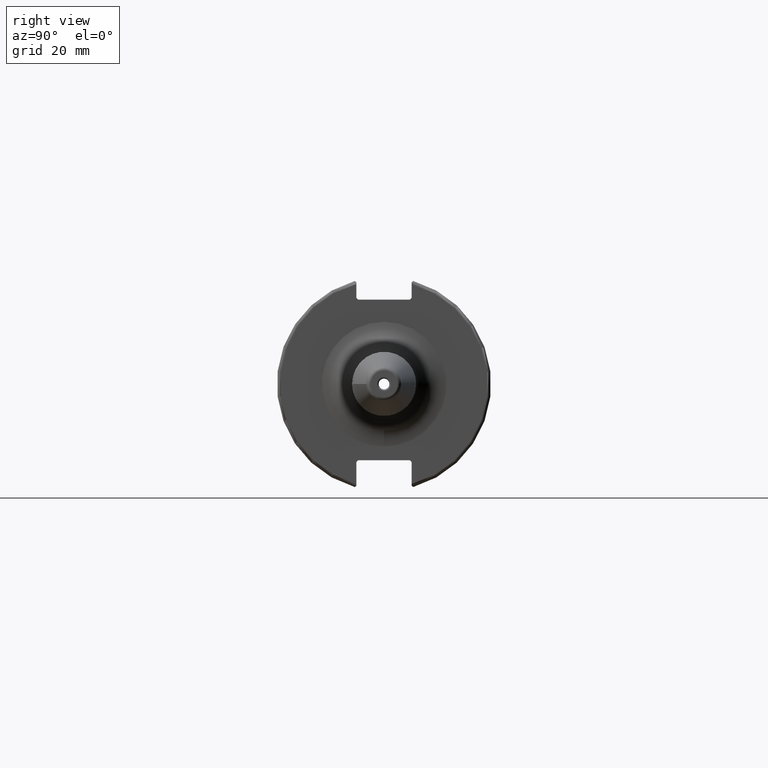
[diagram: clean part render]
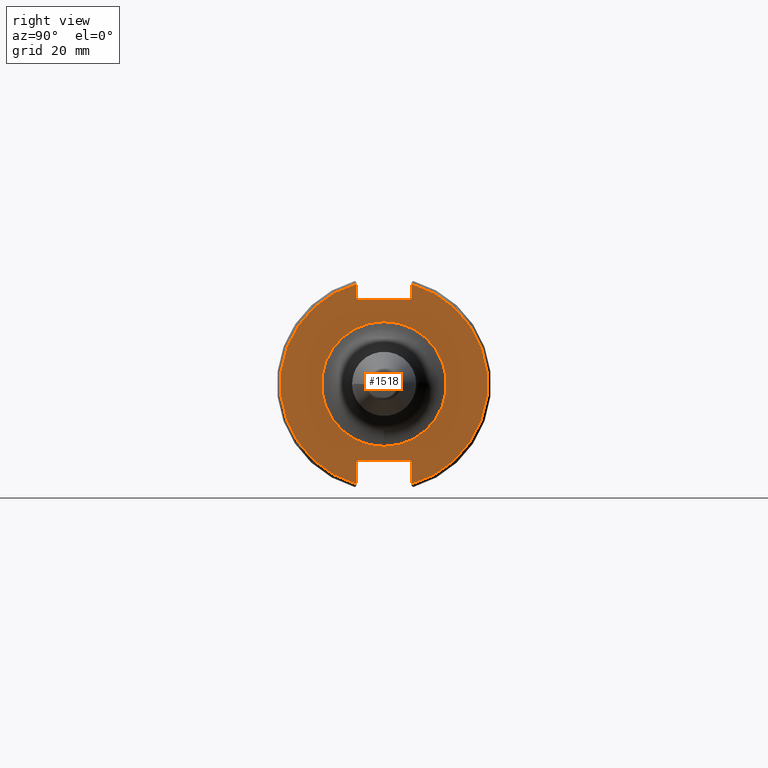
[diagram: same view with one face highlighted and labeled with its STEP entity id]
A machine part, right view. The second image highlights one B-rep face of the part: STEP entity #1518.
In plain terms, the highlighted planar face has unit normal (1, 0, 0).
Its self-contained STEP definition (entity closure, byte-faithful):
#99=LINE('',#2307,#195);
#100=LINE('',#2309,#196);
#101=LINE('',#2311,#197);
#102=LINE('',#2313,#198);
#103=LINE('',#2315,#199);
#104=LINE('',#2319,#200);
#105=LINE('',#2321,#201);
#106=LINE('',#2323,#202);
#107=LINE('',#2325,#203);
#108=LINE('',#2326,#204);
#195=VECTOR('',#1855,10.);
#196=VECTOR('',#1856,10.);
#197=VECTOR('',#1857,10.);
#198=VECTOR('',#1858,10.);
#199=VECTOR('',#1859,10.);
#200=VECTOR('',#1862,10.);
#201=VECTOR('',#1863,10.);
#202=VECTOR('',#1864,10.);
#203=VECTOR('',#1865,10.);
#204=VECTOR('',#1866,10.);
#317=FACE_BOUND('',#463,.T.);
#331=PLANE('',#1643);
#373=FACE_OUTER_BOUND('',#462,.T.);
#462=EDGE_LOOP('',(#1058,#1059,#1060,#1061,#1062,#1063,#1064,#1065,#1066,
#1067,#1068,#1069));
#463=EDGE_LOOP('',(#1070));
#568=CIRCLE('',#1640,18.5);
#570=CIRCLE('',#1644,30.75);
#571=CIRCLE('',#1645,30.75);
#642=VERTEX_POINT('',#2296);
#643=VERTEX_POINT('',#2303);
#644=VERTEX_POINT('',#2304);
#645=VERTEX_POINT('',#2306);
#646=VERTEX_POINT('',#2308);
#647=VERTEX_POINT('',#2310);
#648=VERTEX_POINT('',#2312);
#649=VERTEX_POINT('',#2314);
#650=VERTEX_POINT('',#2316);
#651=VERTEX_POINT('',#2318);
#652=VERTEX_POINT('',#2320);
#653=VERTEX_POINT('',#2322);
#654=VERTEX_POINT('',#2324);
#802=EDGE_CURVE('',#642,#642,#568,.T.);
#805=EDGE_CURVE('',#643,#644,#570,.T.);
#806=EDGE_CURVE('',#643,#645,#99,.T.);
#807=EDGE_CURVE('',#646,#645,#100,.T.);
#808=EDGE_CURVE('',#646,#647,#101,.T.);
#809=EDGE_CURVE('',#648,#647,#102,.T.);
#810=EDGE_CURVE('',#648,#649,#103,.T.);
#811=EDGE_CURVE('',#650,#649,#571,.T.);
#812=EDGE_CURVE('',#650,#651,#104,.T.);
#813=EDGE_CURVE('',#652,#651,#105,.T.);
#814=EDGE_CURVE('',#652,#653,#106,.T.);
#815=EDGE_CURVE('',#654,#653,#107,.T.);
#816=EDGE_CURVE('',#654,#644,#108,.T.);
#1058=ORIENTED_EDGE('',*,*,#805,.F.);
#1059=ORIENTED_EDGE('',*,*,#806,.T.);
#1060=ORIENTED_EDGE('',*,*,#807,.F.);
#1061=ORIENTED_EDGE('',*,*,#808,.T.);
#1062=ORIENTED_EDGE('',*,*,#809,.F.);
#1063=ORIENTED_EDGE('',*,*,#810,.T.);
#1064=ORIENTED_EDGE('',*,*,#811,.F.);
#1065=ORIENTED_EDGE('',*,*,#812,.T.);
#1066=ORIENTED_EDGE('',*,*,#813,.F.);
#1067=ORIENTED_EDGE('',*,*,#814,.T.);
#1068=ORIENTED_EDGE('',*,*,#815,.F.);
#1069=ORIENTED_EDGE('',*,*,#816,.T.);
#1070=ORIENTED_EDGE('',*,*,#802,.F.);
#1518=ADVANCED_FACE('',(#373,#317),#331,.T.);
#1640=AXIS2_PLACEMENT_3D('',#2298,#1844,#1845);
#1643=AXIS2_PLACEMENT_3D('',#2302,#1851,#1852);
#1644=AXIS2_PLACEMENT_3D('',#2305,#1853,#1854);
#1645=AXIS2_PLACEMENT_3D('',#2317,#1860,#1861);
#1844=DIRECTION('center_axis',(1.,0.,0.));
#1845=DIRECTION('ref_axis',(0.,-1.,-1.22464679914735E-16));
#1851=DIRECTION('center_axis',(1.,0.,0.));
#1852=DIRECTION('ref_axis',(0.,0.,-1.));
#1853=DIRECTION('center_axis',(-1.,0.,0.));
#1854=DIRECTION('ref_axis',(0.,1.,-6.12323399573677E-17));
#1855=DIRECTION('',(0.,0.,-1.));
#1856=DIRECTION('',(0.,0.707106781186549,0.707106781186546));
#1857=DIRECTION('',(0.,-1.,0.));
#1858=DIRECTION('',(0.,0.70710678118655,-0.707106781186545));
#1859=DIRECTION('',(0.,0.,1.));
#1860=DIRECTION('center_axis',(-1.,0.,0.));
#1861=DIRECTION('ref_axis',(0.,-1.,1.60812264967664E-16));
#1862=DIRECTION('',(0.,0.,1.));
#1863=DIRECTION('',(0.,-0.707106781186549,-0.707106781186546));
#1864=DIRECTION('',(0.,1.,0.));
#1865=DIRECTION('',(0.,-0.707106781186549,0.707106781186546));
#1866=DIRECTION('',(0.,0.,-1.));
#2296=CARTESIAN_POINT('',(19.05,-2.2655965784226E-15,-18.5));
#2298=CARTESIAN_POINT('Origin',(19.05,0.,0.));
#2302=CARTESIAN_POINT('Origin',(19.05,0.,0.));
#2303=CARTESIAN_POINT('',(19.05,8.19,29.6392712461019));
#2304=CARTESIAN_POINT('',(19.05,8.19,-29.6392712461019));
#2305=CARTESIAN_POINT('Origin',(19.05,0.,0.));
#2306=CARTESIAN_POINT('',(19.05,8.19,25.5));
#2307=CARTESIAN_POINT('',(19.05,8.19,12.5));
#2308=CARTESIAN_POINT('',(19.05,7.69,25.));
#2309=CARTESIAN_POINT('',(19.05,-0.35750000000001,16.9525));
#2310=CARTESIAN_POINT('',(19.05,-7.69,25.));
#2311=CARTESIAN_POINT('',(19.05,0.,25.));
#2312=CARTESIAN_POINT('',(19.05,-8.19,25.5));
#2313=CARTESIAN_POINT('',(19.05,0.357500000000014,16.9525));
#2314=CARTESIAN_POINT('',(19.05,-8.19,29.6392712461019));
#2315=CARTESIAN_POINT('',(19.05,-8.19,12.5));
#2316=CARTESIAN_POINT('',(19.05,-8.19,-29.6392712461019));
#2317=CARTESIAN_POINT('Origin',(19.05,0.,0.));
#2318=CARTESIAN_POINT('',(19.05,-8.19,-23.1));
#2319=CARTESIAN_POINT('',(19.05,-8.19,-11.3));
#2320=CARTESIAN_POINT('',(19.05,-7.69,-22.6));
#2321=CARTESIAN_POINT('',(19.05,-0.242499999999991,-15.1525));
#2322=CARTESIAN_POINT('',(19.05,7.69,-22.6));
#2323=CARTESIAN_POINT('',(19.05,-2.77555756156289E-16,-22.6));
#2324=CARTESIAN_POINT('',(19.05,8.19,-23.1));
#2325=CARTESIAN_POINT('',(19.05,0.242499999999989,-15.1525));
#2326=CARTESIAN_POINT('',(19.05,8.19,-11.3));